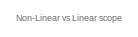
[diagram: root canvas - part 1/8, top right region]
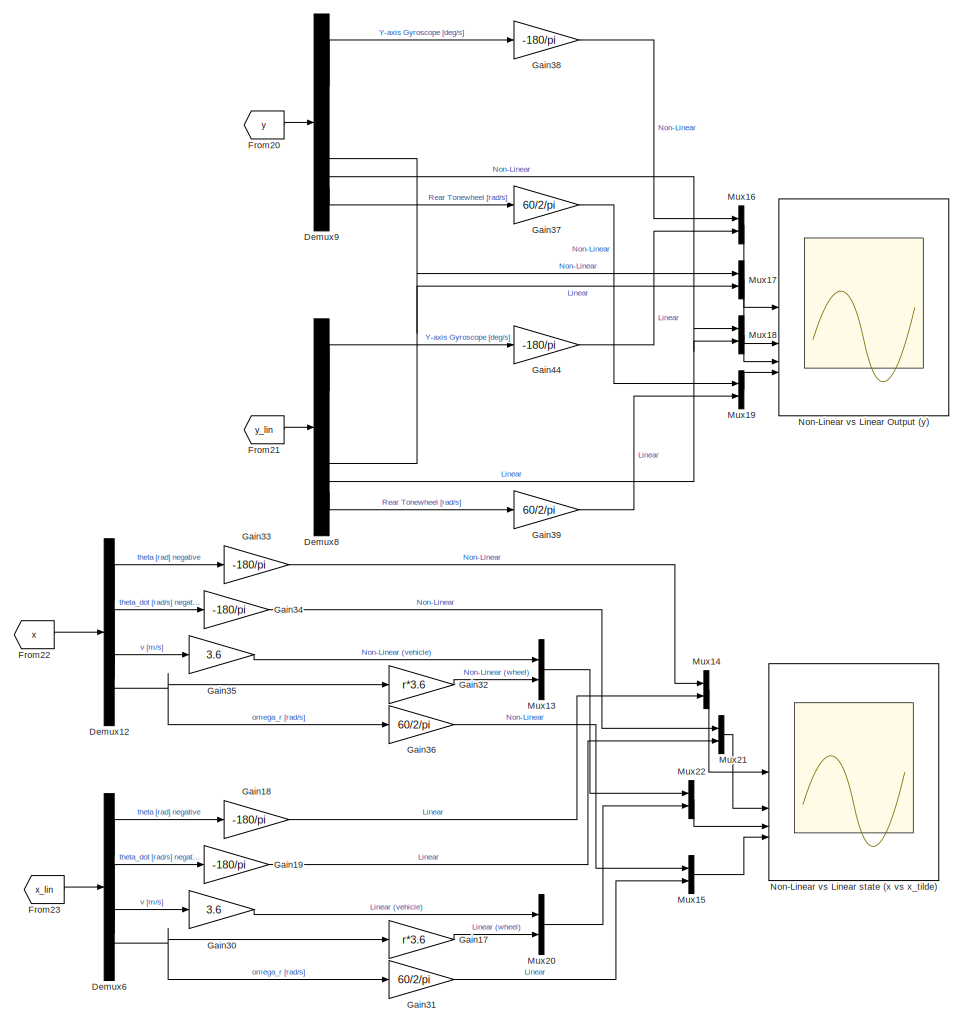
[diagram: root canvas - part 2/8, top right region]
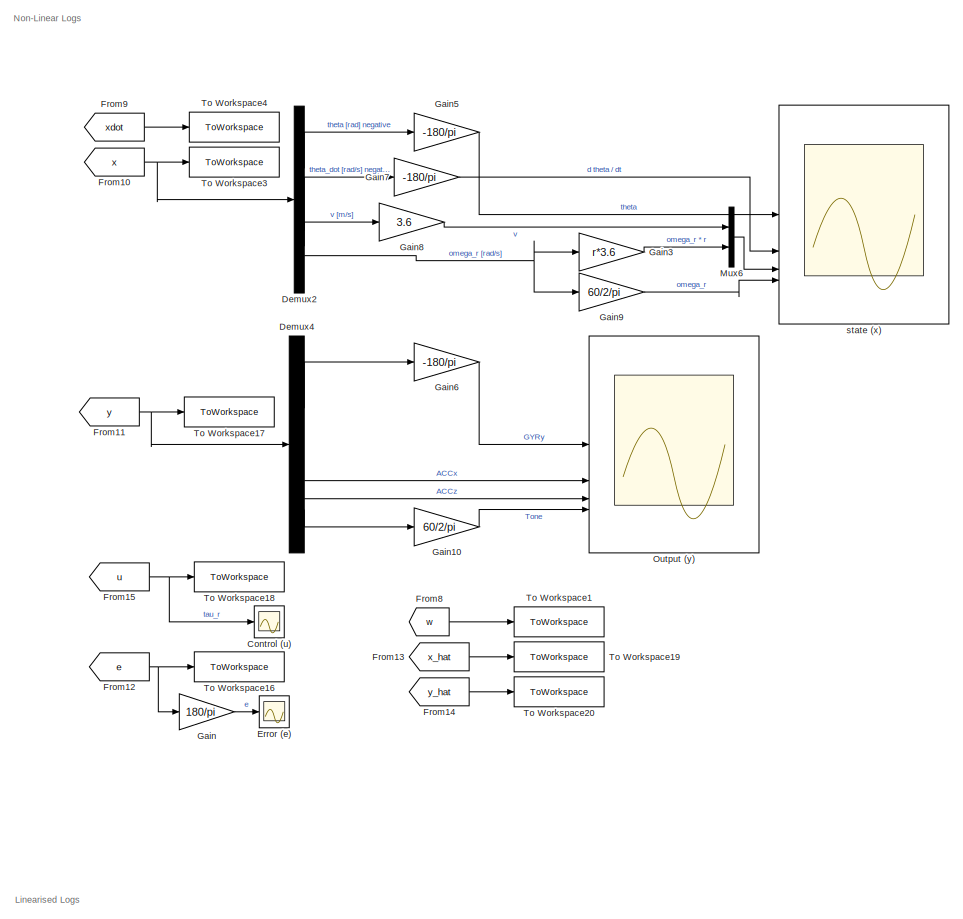
[diagram: root canvas - part 3/8, top center region]
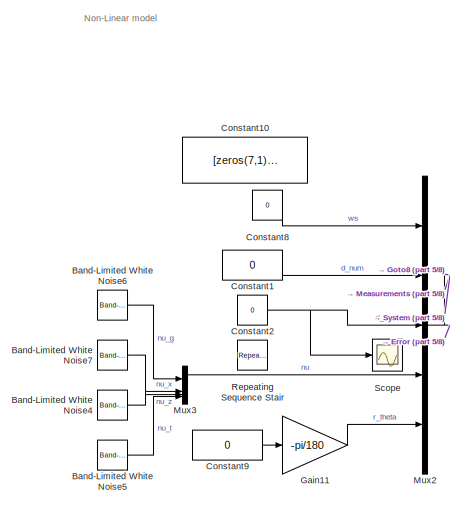
[diagram: root canvas - part 4/8, top left region]
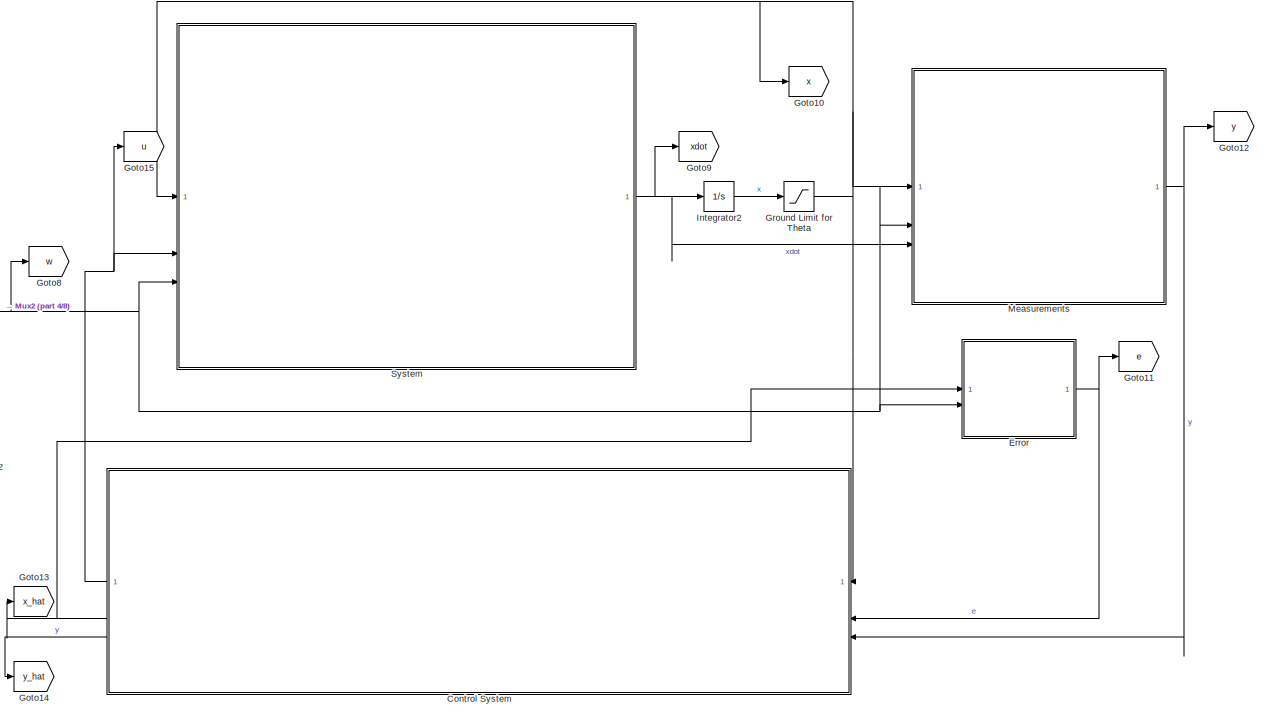
[diagram: root canvas - part 5/8, top left region]
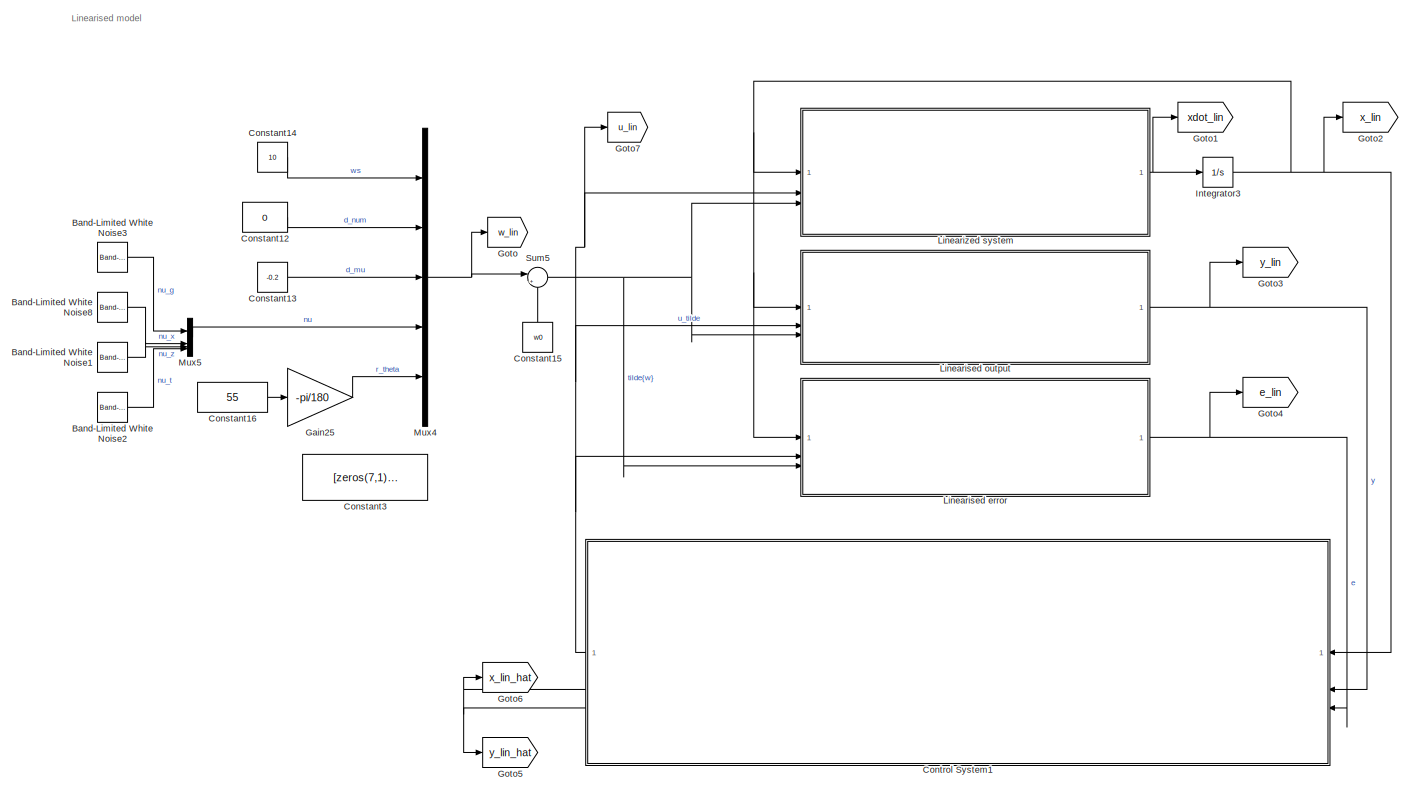
[diagram: root canvas - part 6/8, middle left region]
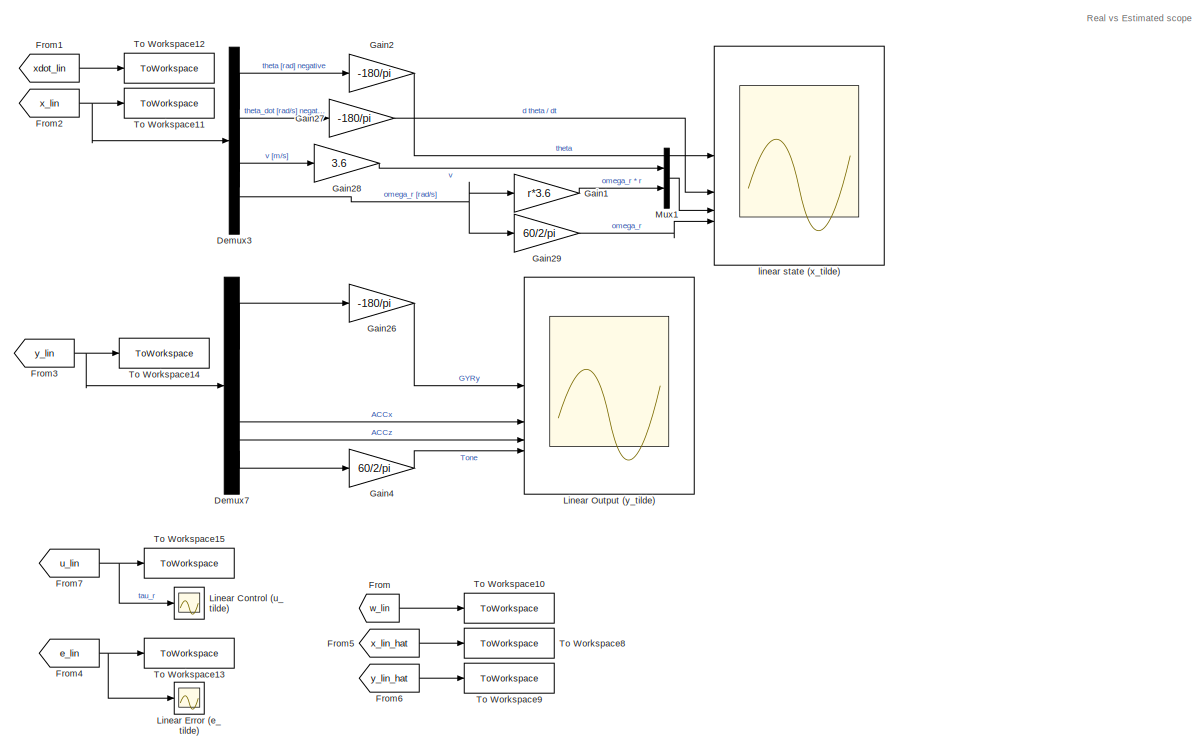
[diagram: root canvas - part 7/8, bottom center region]
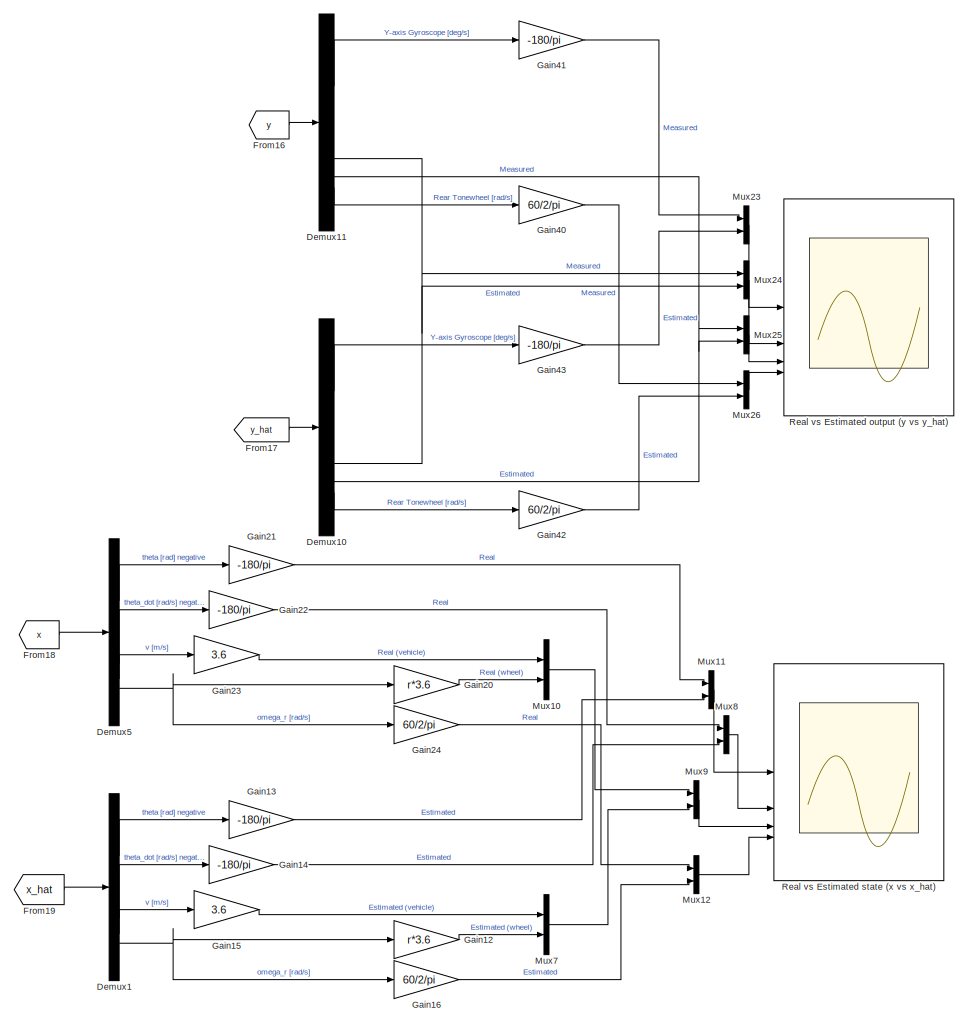
[diagram: root canvas - part 8/8, bottom right region]
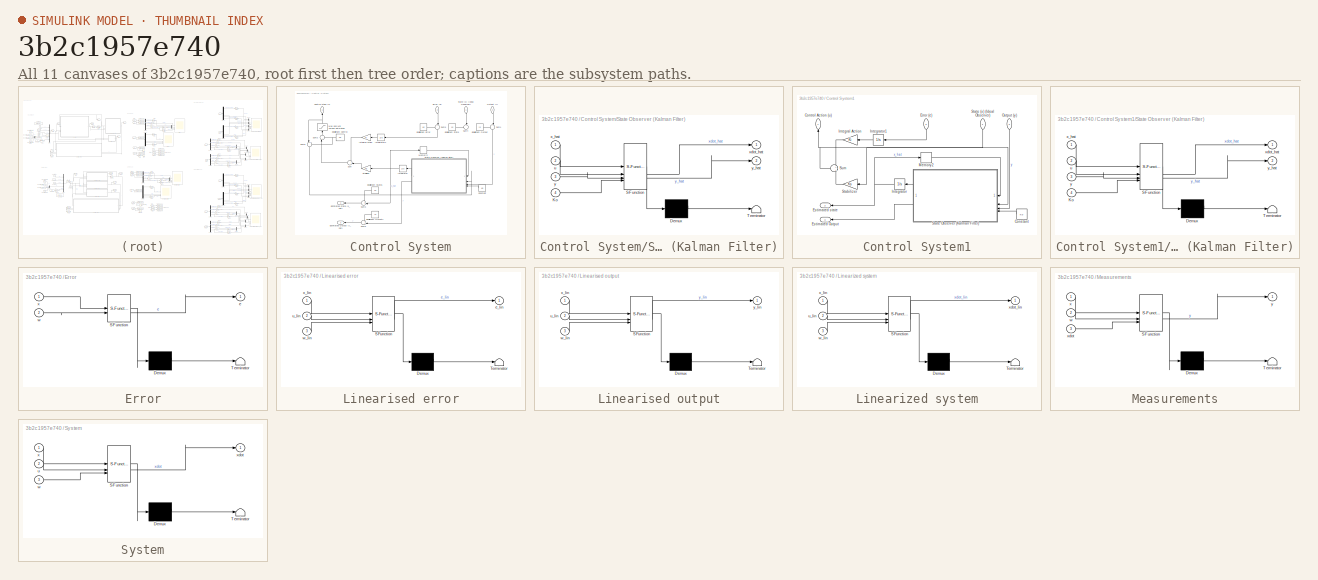
[diagram: thumbnail index - all 11 canvases of the model, root first then tree order]
MODEL slx_3b2c1957e740
KIND model
CONFIG AbsTol = auto
CONFIG EnableMultiTasking = off
CONFIG FixedStep = timestep
CONFIG InitFcn = % parameters= load("0 - Model\parameters2.mat");\n% \n% global parameters.g\n\n% global g\n% \n% % geometry parameters\n% global wb b a h 
CONFIG MaxStep = auto
CONFIG MinStep = auto
CONFIG RelTol = 1e-3
CONFIG SampleTimeConstraint = Unconstrained
CONFIG SolverName = FixedStepAuto
CONFIG StartTime = 0.0
CONFIG StopTime = simtime
BLOCK [Reference] Band-Limited White Noise1  REF=simulink/Sources/Band-Limited
White Noise
  Commented = on
  SourceBlock = simulink/Sources/Band-Limited\nWhite Noise
  SourceType = Band-Limited White Noise.
BLOCK [Reference] Band-Limited White Noise2  REF=simulink/Sources/Band-Limited
White Noise
  Commented = on
  SourceBlock = simulink/Sources/Band-Limited\nWhite Noise
  SourceType = Band-Limited White Noise.
BLOCK [Reference] Band-Limited White Noise3  REF=simulink/Sources/Band-Limited
White Noise
  Commented = on
  SourceBlock = simulink/Sources/Band-Limited\nWhite Noise
  SourceType = Band-Limited White Noise.
BLOCK [Reference] Band-Limited White Noise4  REF=simulink/Sources/Band-Limited
White Noise
  SourceBlock = simulink/Sources/Band-Limited\nWhite Noise
  SourceType = Band-Limited White Noise.
BLOCK [Reference] Band-Limited White Noise5  REF=simulink/Sources/Band-Limited
White Noise
  SourceBlock = simulink/Sources/Band-Limited\nWhite Noise
  SourceType = Band-Limited White Noise.
BLOCK [Reference] Band-Limited White Noise6  REF=simulink/Sources/Band-Limited
White Noise
  SourceBlock = simulink/Sources/Band-Limited\nWhite Noise
  SourceType = Band-Limited White Noise.
BLOCK [Reference] Band-Limited White Noise7  REF=simulink/Sources/Band-Limited
White Noise
  SourceBlock = simulink/Sources/Band-Limited\nWhite Noise
  SourceType = Band-Limited White Noise.
BLOCK [Reference] Band-Limited White Noise8  REF=simulink/Sources/Band-Limited
White Noise
  Commented = on
  SourceBlock = simulink/Sources/Band-Limited\nWhite Noise
  SourceType = Band-Limited White Noise.
BLOCK [Constant] Constant1
  Value = 0
BLOCK [Constant] Constant10
  Value = [zeros(7,1); -deg2rad(55)]
BLOCK [Constant] Constant12
  Commented = on
  Value = 0
BLOCK [Constant] Constant13
  Commented = on
  Value = -0.2
BLOCK [Constant] Constant14
  Commented = on
  Value = 10
BLOCK [Constant] Constant15
  Commented = on
  NameLocation = right
  Value = w0
BLOCK [Constant] Constant16
  Commented = on
  Value = 55
BLOCK [Constant] Constant2
  Value = 0
BLOCK [Constant] Constant3
  Commented = on
  Value = [zeros(7,1); -deg2rad(55)]
BLOCK [Constant] Constant8
  Value = 0
BLOCK [Constant] Constant9
  Value = 0
BLOCK [Scope] Control (u)
  Floating = off
  NumInputPorts = 1
  ScopeSpecificationString = Simulink.scopes.TimeScopeBlockCfg('CurrentConfiguration', extmgr.ConfigurationSet(extmgr.Configuration('Core','General UI',true),extmgr.Configuration('Core','Source UI',true),extmgr.Configuration('Sources','WiredSimulink',true,'DataLoggingVariableName','ScopeData1'),extmgr.Configuration('Visuals','Time Domain',true,'SerializedDisplays',{struct('MinYLimReal','-890.18336','MaxYLimReal','4081.97178',...<+1608ch>
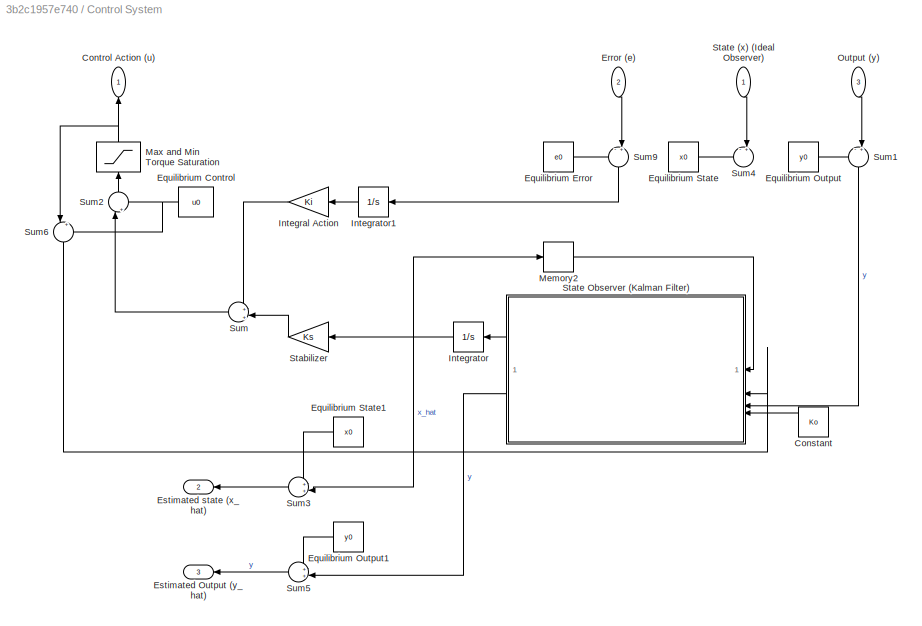
BLOCK [SubSystem] Control System
  NameLocation = top
BLOCK [Constant] Control System/Constant
  NameLocation = top
  Value = Ko
BLOCK [Outport] Control System/Control Action (u)
  NameLocation = right
BLOCK [Constant] Control System/Equilibrium Control
  Value = u0
BLOCK [Constant] Control System/Equilibrium Error
  Value = e0
BLOCK [Constant] Control System/Equilibrium Output
  Value = y0
BLOCK [Constant] Control System/Equilibrium Output1
  NameLocation = top
  Value = y0
BLOCK [Constant] Control System/Equilibrium State
  Value = x0
BLOCK [Constant] Control System/Equilibrium State1
  NameLocation = top
  Value = x0
BLOCK [Inport] Control System/Error (e)
  NameLocation = left
  Port = 2
BLOCK [Outport] Control System/Estimated Output (y_hat)
  NameLocation = top
  Port = 3
BLOCK [Outport] Control System/Estimated state (x_hat)
  NameLocation = top
  Port = 2
BLOCK [Gain] Control System/Integral Action
  Gain = Ki
  Multiplication = Matrix(K*u)
  NameLocation = top
BLOCK [Integrator] Control System/Integrator
  InitialCondition = xinitial-x0
  NameLocation = top
BLOCK [Integrator] Control System/Integrator1
  NameLocation = top
BLOCK [Saturate] Control System/Max and Min Torque Saturation
  LowerLimit = -200
  NameLocation = right
  UpperLimit = 754.2
BLOCK [Memory] Control System/Memory2
  InitialCondition = xinitial-x0
BLOCK [Inport] Control System/Output (y)
  NameLocation = left
  Port = 3
BLOCK [Gain] Control System/Stabilizer
  Gain = Ks
  Multiplication = Matrix(K*u)
BLOCK [Inport] Control System/State (x) (Ideal Observer)
  NameLocation = left
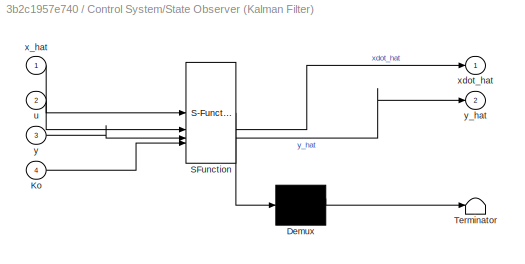
BLOCK [SubSystem] Control System/State Observer (Kalman Filter)
  ErrorFcn = Stateflow.Translate.translate
  NameLocation = top
  PermitHierarchicalResolution = ExplicitOnly
  SFBlockType = MATLAB Function
  TreatAsAtomicUnit = on
BLOCK [Demux] Control System/State Observer (Kalman Filter)/ Demux 
  Outputs = 1
BLOCK [S-Function] Control System/State Observer (Kalman Filter)/ SFunction 
  EnableBusSupport = on
  FunctionName = sf_sfun
  PortCounts = [4 3]
  SFcnIsStateOwnerBlock = off
  SFunctionDeploymentMode = off
  Tag = Stateflow S-Function 5
BLOCK [Terminator] Control System/State Observer (Kalman Filter)/ Terminator 
BLOCK [Inport] Control System/State Observer (Kalman Filter)/Ko
  Port = 4
BLOCK [Inport] Control System/State Observer (Kalman Filter)/u
  Port = 2
BLOCK [Inport] Control System/State Observer (Kalman Filter)/x_hat
BLOCK [Outport] Control System/State Observer (Kalman Filter)/xdot_hat
BLOCK [Inport] Control System/State Observer (Kalman Filter)/y
  Port = 3
BLOCK [Outport] Control System/State Observer (Kalman Filter)/y_hat
  Port = 2
BLOCK [Sum] Control System/Sum
  Inputs = +|+
  NameLocation = top
BLOCK [Sum] Control System/Sum1
  Inputs = -+|
  NameLocation = left
BLOCK [Sum] Control System/Sum2
  Inputs = |++
  NameLocation = right
BLOCK [Sum] Control System/Sum3
  Inputs = ++|
  NameLocation = top
BLOCK [Sum] Control System/Sum4
  Inputs = -+|
  NameLocation = left
BLOCK [Sum] Control System/Sum5
  Inputs = ++|
  NameLocation = top
BLOCK [Sum] Control System/Sum6
  Inputs = |+-
  NameLocation = left
BLOCK [Sum] Control System/Sum9
  Inputs = -+|
  NameLocation = left
BLOCK [SubSystem] Control System1
  Commented = on
  NameLocation = top
BLOCK [Constant] Control System1/Constant
  NameLocation = top
  Value = Ko
BLOCK [Outport] Control System1/Control Action (u)
  NameLocation = right
BLOCK [Inport] Control System1/Error (e)
  NameLocation = left
  Port = 3
BLOCK [Outport] Control System1/Estimated Output
  NameLocation = top
  Port = 3
BLOCK [Outport] Control System1/Estimated state
  NameLocation = top
  Port = 2
BLOCK [Gain] Control System1/Integral Action
  Gain = Ki
  Multiplication = Matrix(K*u)
  NameLocation = top
BLOCK [Integrator] Control System1/Integrator
  InitialCondition = xinitial-x0
  NameLocation = top
BLOCK [Integrator] Control System1/Integrator1
  NameLocation = top
BLOCK [Memory] Control System1/Memory2
  InitialCondition = xinitial-x0
BLOCK [Inport] Control System1/Output (y)
  NameLocation = left
  Port = 2
BLOCK [Gain] Control System1/Stabilizer
  Gain = Ks
  Multiplication = Matrix(K*u)
BLOCK [Inport] Control System1/State (x) (Ideal Observer)
  NameLocation = left
BLOCK [SubSystem] Control System1/State Observer (Kalman Filter)
  ErrorFcn = Stateflow.Translate.translate
  NameLocation = top
  PermitHierarchicalResolution = ExplicitOnly
  SFBlockType = MATLAB Function
  TreatAsAtomicUnit = on
BLOCK [Demux] Control System1/State Observer (Kalman Filter)/ Demux 
  Outputs = 1
BLOCK [S-Function] Control System1/State Observer (Kalman Filter)/ SFunction 
  EnableBusSupport = on
  FunctionName = sf_sfun
  PortCounts = [4 3]
  SFcnIsStateOwnerBlock = off
  SFunctionDeploymentMode = off
  Tag = Stateflow S-Function 2
BLOCK [Terminator] Control System1/State Observer (Kalman Filter)/ Terminator 
BLOCK [Inport] Control System1/State Observer (Kalman Filter)/Ko
  Port = 4
BLOCK [Inport] Control System1/State Observer (Kalman Filter)/u
  Port = 2
BLOCK [Inport] Control System1/State Observer (Kalman Filter)/x_hat
BLOCK [Outport] Control System1/State Observer (Kalman Filter)/xdot_hat
BLOCK [Inport] Control System1/State Observer (Kalman Filter)/y
  Port = 3
BLOCK [Outport] Control System1/State Observer (Kalman Filter)/y_hat
  Port = 2
BLOCK [Sum] Control System1/Sum
  Inputs = +|+
  NameLocation = top
BLOCK [Demux] Demux1
BLOCK [Demux] Demux10
BLOCK [Demux] Demux11
BLOCK [Demux] Demux12
  Commented = on
BLOCK [Demux] Demux2
BLOCK [Demux] Demux3
  Commented = on
BLOCK [Demux] Demux4
BLOCK [Demux] Demux5
BLOCK [Demux] Demux6
  Commented = on
BLOCK [Demux] Demux7
  Commented = on
BLOCK [Demux] Demux8
  Commented = on
BLOCK [Demux] Demux9
  Commented = on
BLOCK [SubSystem] Error
  ErrorFcn = Stateflow.Translate.translate
  PermitHierarchicalResolution = ExplicitOnly
  SFBlockType = MATLAB Function
  TreatAsAtomicUnit = on
BLOCK [Scope] Error (e)
  Floating = off
  NumInputPorts = 1
  ScopeSpecificationString = Simulink.scopes.TimeScopeBlockCfg('CurrentConfiguration', extmgr.ConfigurationSet(extmgr.Configuration('Core','General UI',true),extmgr.Configuration('Core','Source UI',true),extmgr.Configuration('Sources','WiredSimulink',true,'DataLoggingVariableName','ScopeData2'),extmgr.Configuration('Visuals','Time Domain',true,'SerializedDisplays',{struct('MinYLimReal','-0.89334','MaxYLimReal','5.70225','YLab...<+1533ch>
BLOCK [Demux] Error/ Demux 
  Outputs = 1
BLOCK [S-Function] Error/ SFunction 
  EnableBusSupport = on
  FunctionName = sf_sfun
  PortCounts = [2 2]
  SFcnIsStateOwnerBlock = off
  SFunctionDeploymentMode = off
  Tag = Stateflow S-Function 11
BLOCK [Terminator] Error/ Terminator 
BLOCK [Outport] Error/e
BLOCK [Inport] Error/w
  Port = 2
BLOCK [Inport] Error/x
BLOCK [From] From
  Commented = on
  GotoTag = w_lin
BLOCK [From] From1
  Commented = on
  GotoTag = xdot_lin
BLOCK [From] From10
  GotoTag = x
BLOCK [From] From11
  GotoTag = y
BLOCK [From] From12
  GotoTag = e
BLOCK [From] From13
  GotoTag = x_hat
BLOCK [From] From14
  GotoTag = y_hat
BLOCK [From] From15
  GotoTag = u
BLOCK [From] From16
  GotoTag = y
BLOCK [From] From17
  GotoTag = y_hat
BLOCK [From] From18
  GotoTag = x
BLOCK [From] From19
  GotoTag = x_hat
BLOCK [From] From2
  Commented = on
  GotoTag = x_lin
BLOCK [From] From20
  Commented = on
  GotoTag = y
BLOCK [From] From21
  Commented = on
  GotoTag = y_lin
BLOCK [From] From22
  Commented = on
  GotoTag = x
BLOCK [From] From23
  Commented = on
  GotoTag = x_lin
BLOCK [From] From3
  Commented = on
  GotoTag = y_lin
BLOCK [From] From4
  Commented = on
  GotoTag = e_lin
BLOCK [From] From5
  Commented = on
  GotoTag = x_lin_hat
BLOCK [From] From6
  Commented = on
  GotoTag = y_lin_hat
BLOCK [From] From7
  Commented = on
  GotoTag = u_lin
BLOCK [From] From8
  GotoTag = w
BLOCK [From] From9
  GotoTag = xdot
BLOCK [Gain] Gain
  Gain = 180/pi
BLOCK [Gain] Gain1
  Commented = on
  Gain = r*3.6
BLOCK [Gain] Gain10
  Gain = 60/2/pi
BLOCK [Gain] Gain11
  Gain = -pi/180
BLOCK [Gain] Gain12
  Gain = r*3.6
BLOCK [Gain] Gain13
  Gain = -180/pi
BLOCK [Gain] Gain14
  Gain = -180/pi
BLOCK [Gain] Gain15
  Gain = 3.6
BLOCK [Gain] Gain16
  Gain = 60/2/pi
BLOCK [Gain] Gain17
  Commented = on
  Gain = r*3.6
BLOCK [Gain] Gain18
  Commented = on
  Gain = -180/pi
BLOCK [Gain] Gain19
  Commented = on
  Gain = -180/pi
BLOCK [Gain] Gain2
  Commented = on
  Gain = -180/pi
BLOCK [Gain] Gain20
  Gain = r*3.6
BLOCK [Gain] Gain21
  Gain = -180/pi
BLOCK [Gain] Gain22
  Gain = -180/pi
BLOCK [Gain] Gain23
  Gain = 3.6
BLOCK [Gain] Gain24
  Gain = 60/2/pi
BLOCK [Gain] Gain25
  Commented = on
  Gain = -pi/180
BLOCK [Gain] Gain26
  Commented = on
  Gain = -180/pi
BLOCK [Gain] Gain27
  Commented = on
  Gain = -180/pi
BLOCK [Gain] Gain28
  Commented = on
  Gain = 3.6
BLOCK [Gain] Gain29
  Commented = on
  Gain = 60/2/pi
BLOCK [Gain] Gain3
  Gain = r*3.6
BLOCK [Gain] Gain30
  Commented = on
  Gain = 3.6
BLOCK [Gain] Gain31
  Commented = on
  Gain = 60/2/pi
BLOCK [Gain] Gain32
  Commented = on
  Gain = r*3.6
BLOCK [Gain] Gain33
  Commented = on
  Gain = -180/pi
BLOCK [Gain] Gain34
  Commented = on
  Gain = -180/pi
BLOCK [Gain] Gain35
  Commented = on
  Gain = 3.6
BLOCK [Gain] Gain36
  Commented = on
  Gain = 60/2/pi
BLOCK [Gain] Gain37
  Commented = on
  Gain = 60/2/pi
BLOCK [Gain] Gain38
  Commented = on
  Gain = -180/pi
BLOCK [Gain] Gain39
  Commented = on
  Gain = 60/2/pi
BLOCK [Gain] Gain4
  Commented = on
  Gain = 60/2/pi
BLOCK [Gain] Gain40
  Gain = 60/2/pi
BLOCK [Gain] Gain41
  Gain = -180/pi
BLOCK [Gain] Gain42
  Gain = 60/2/pi
BLOCK [Gain] Gain43
  Gain = -180/pi
BLOCK [Gain] Gain44
  Commented = on
  Gain = -180/pi
BLOCK [Gain] Gain5
  Gain = -180/pi
BLOCK [Gain] Gain6
  Gain = -180/pi
BLOCK [Gain] Gain7
  Gain = -180/pi
BLOCK [Gain] Gain8
  Gain = 3.6
BLOCK [Gain] Gain9
  Gain = 60/2/pi
BLOCK [Goto] Goto
  Commented = on
  GotoTag = w_lin
BLOCK [Goto] Goto1
  Commented = on
  GotoTag = xdot_lin
BLOCK [Goto] Goto10
  GotoTag = x
BLOCK [Goto] Goto11
  GotoTag = e
BLOCK [Goto] Goto12
  GotoTag = y
BLOCK [Goto] Goto13
  GotoTag = x_hat
BLOCK [Goto] Goto14
  GotoTag = y_hat
BLOCK [Goto] Goto15
  GotoTag = u
BLOCK [Goto] Goto2
  Commented = on
  GotoTag = x_lin
BLOCK [Goto] Goto3
  Commented = on
  GotoTag = y_lin
BLOCK [Goto] Goto4
  Commented = on
  GotoTag = e_lin
BLOCK [Goto] Goto5
  Commented = on
  GotoTag = y_lin_hat
BLOCK [Goto] Goto6
  Commented = on
  GotoTag = x_lin_hat
BLOCK [Goto] Goto7
  Commented = on
  GotoTag = u_lin
BLOCK [Goto] Goto8
  GotoTag = w
BLOCK [Goto] Goto9
  GotoTag = xdot
BLOCK [Saturate] Ground Limit for Theta
  LowerLimit = [-inf;-inf;-inf;-inf]
  UpperLimit = [0;inf;inf;inf]
BLOCK [Integrator] Integrator2
  InitialCondition = xinitial
  LowerSaturationLimit = -45
  UpperSaturationLimit = 5
BLOCK [Integrator] Integrator3
  Commented = on
  InitialCondition = xinitial - x0
  LowerSaturationLimit = -45
  UpperSaturationLimit = 5
BLOCK [Scope] Linear Control (u_tilde)
  Commented = on
  Floating = off
  NumInputPorts = 1
  ScopeSpecificationString = Simulink.scopes.TimeScopeBlockCfg('CurrentConfiguration', extmgr.ConfigurationSet(extmgr.Configuration('Core','General UI',true),extmgr.Configuration('Core','Source UI',true),extmgr.Configuration('Sources','WiredSimulink',true,'DataLoggingVariableName','ScopeData7'),extmgr.Configuration('Visuals','Time Domain',true,'SerializedDisplays',{struct('MinYLimReal','82.60182','MaxYLimReal','2984.76709','Y...<+1605ch>
BLOCK [Scope] Linear Error (e_tilde)
  Commented = on
  Floating = off
  NumInputPorts = 1
  ScopeSpecificationString = Simulink.scopes.TimeScopeBlockCfg('CurrentConfiguration', extmgr.ConfigurationSet(extmgr.Configuration('Core','General UI',true),extmgr.Configuration('Core','Source UI',true),extmgr.Configuration('Sources','WiredSimulink',true,'DataLoggingVariableName','ScopeData8'),extmgr.Configuration('Visuals','Time Domain',true,'SerializedDisplays',{struct('MinYLimReal','-4.64133','MaxYLimReal','0.52523','YLab...<+1389ch>
BLOCK [Scope] Linear Output (y_tilde)
  Commented = on
  Floating = off
  NumInputPorts = 4
  ScopeSpecificationString = Simulink.scopes.TimeScopeBlockCfg('CurrentConfiguration', extmgr.ConfigurationSet(extmgr.Configuration('Core','General UI',true),extmgr.Configuration('Core','Source UI',true),extmgr.Configuration('Sources','WiredSimulink',true,'DataLoggingVariableName','ScopeData9'),extmgr.Configuration('Visuals','Time Domain',true,'SerializedDisplays',{struct('MinYLimReal','-5.26063','MaxYLimReal','47.3457','YLab...<+4058ch>
BLOCK [SubSystem] Linearised error
  Commented = on
  ErrorFcn = Stateflow.Translate.translate
  PermitHierarchicalResolution = ExplicitOnly
  SFBlockType = MATLAB Function
  TreatAsAtomicUnit = on
BLOCK [Demux] Linearised error/ Demux 
  Outputs = 1
BLOCK [S-Function] Linearised error/ SFunction 
  EnableBusSupport = on
  FunctionName = sf_sfun
  PortCounts = [3 2]
  SFcnIsStateOwnerBlock = off
  SFunctionDeploymentMode = off
  Tag = Stateflow S-Function 8
BLOCK [Terminator] Linearised error/ Terminator 
BLOCK [Outport] Linearised error/e_lin
BLOCK [Inport] Linearised error/u_lin
  Port = 2
BLOCK [Inport] Linearised error/w_lin
  Port = 3
BLOCK [Inport] Linearised error/x_lin
BLOCK [SubSystem] Linearised output
  Commented = on
  ErrorFcn = Stateflow.Translate.translate
  PermitHierarchicalResolution = ExplicitOnly
  SFBlockType = MATLAB Function
  TreatAsAtomicUnit = on
BLOCK [Demux] Linearised output/ Demux 
  Outputs = 1
BLOCK [S-Function] Linearised output/ SFunction 
  EnableBusSupport = on
  FunctionName = sf_sfun
  PortCounts = [3 2]
  SFcnIsStateOwnerBlock = off
  SFunctionDeploymentMode = off
  Tag = Stateflow S-Function 7
BLOCK [Terminator] Linearised output/ Terminator 
BLOCK [Inport] Linearised output/u_lin
  Port = 2
BLOCK [Inport] Linearised output/w_lin
  Port = 3
BLOCK [Inport] Linearised output/x_lin
BLOCK [Outport] Linearised output/y_lin
BLOCK [SubSystem] Linearized system
  Commented = on
  ErrorFcn = Stateflow.Translate.translate
  PermitHierarchicalResolution = ExplicitOnly
  SFBlockType = MATLAB Function
  TreatAsAtomicUnit = on
BLOCK [Demux] Linearized system/ Demux 
  Outputs = 1
BLOCK [S-Function] Linearized system/ SFunction 
  EnableBusSupport = on
  FunctionName = sf_sfun
  PortCounts = [3 2]
  SFcnIsStateOwnerBlock = off
  SFunctionDeploymentMode = off
  Tag = Stateflow S-Function 12
BLOCK [Terminator] Linearized system/ Terminator 
BLOCK [Inport] Linearized system/u_lin
  Port = 2
BLOCK [Inport] Linearized system/w_lin
  Port = 3
BLOCK [Inport] Linearized system/x_lin
BLOCK [Outport] Linearized system/xdot_lin
BLOCK [SubSystem] Measurements
  ErrorFcn = Stateflow.Translate.translate
  PermitHierarchicalResolution = ExplicitOnly
  SFBlockType = MATLAB Function
  TreatAsAtomicUnit = on
BLOCK [Demux] Measurements/ Demux 
  Outputs = 1
BLOCK [S-Function] Measurements/ SFunction 
  EnableBusSupport = on
  FunctionName = sf_sfun
  PortCounts = [3 2]
  SFcnIsStateOwnerBlock = off
  SFunctionDeploymentMode = off
  Tag = Stateflow S-Function 10
BLOCK [Terminator] Measurements/ Terminator 
BLOCK [Inport] Measurements/w
  Port = 2
BLOCK [Inport] Measurements/x
BLOCK [Inport] Measurements/xdot
  Port = 3
BLOCK [Outport] Measurements/y
BLOCK [Mux] Mux1
  Commented = on
  DisplayOption = bar
  Inputs = 2
BLOCK [Mux] Mux10
  DisplayOption = bar
  Inputs = 2
BLOCK [Mux] Mux11
  DisplayOption = bar
  Inputs = 2
BLOCK [Mux] Mux12
  DisplayOption = bar
  Inputs = 2
BLOCK [Mux] Mux13
  Commented = on
  DisplayOption = bar
  Inputs = 2
BLOCK [Mux] Mux14
  Commented = on
  DisplayOption = bar
  Inputs = 2
BLOCK [Mux] Mux15
  Commented = on
  DisplayOption = bar
  Inputs = 2
BLOCK [Mux] Mux16
  Commented = on
  DisplayOption = bar
  Inputs = 2
BLOCK [Mux] Mux17
  Commented = on
  DisplayOption = bar
  Inputs = 2
BLOCK [Mux] Mux18
  Commented = on
  DisplayOption = bar
  Inputs = 2
BLOCK [Mux] Mux19
  Commented = on
  DisplayOption = bar
  Inputs = 2
BLOCK [Mux] Mux2
  DisplayOption = bar
  Inputs = 5
BLOCK [Mux] Mux20
  Commented = on
  DisplayOption = bar
  Inputs = 2
BLOCK [Mux] Mux21
  Commented = on
  DisplayOption = bar
  Inputs = 2
BLOCK [Mux] Mux22
  Commented = on
  DisplayOption = bar
  Inputs = 2
BLOCK [Mux] Mux23
  DisplayOption = bar
  Inputs = 2
BLOCK [Mux] Mux24
  DisplayOption = bar
  Inputs = 2
BLOCK [Mux] Mux25
  DisplayOption = bar
  Inputs = 2
BLOCK [Mux] Mux26
  DisplayOption = bar
  Inputs = 2
BLOCK [Mux] Mux3
  DisplayOption = bar
BLOCK [Mux] Mux4
  Commented = on
  DisplayOption = bar
  Inputs = 5
BLOCK [Mux] Mux5
  Commented = on
  DisplayOption = bar
BLOCK [Mux] Mux6
  DisplayOption = bar
  Inputs = 2
BLOCK [Mux] Mux7
  DisplayOption = bar
  Inputs = 2
BLOCK [Mux] Mux8
  DisplayOption = bar
  Inputs = 2
BLOCK [Mux] Mux9
  DisplayOption = bar
  Inputs = 2
BLOCK [Scope] Non-Linear vs Linear Output (y)
  Commented = on
  Floating = off
  NumInputPorts = 4
  ScopeSpecificationString = Simulink.scopes.TimeScopeBlockCfg('CurrentConfiguration', extmgr.ConfigurationSet(extmgr.Configuration('Core','General UI',true),extmgr.Configuration('Core','Source UI',true),extmgr.Configuration('Sources','WiredSimulink',true,'DataLoggingVariableName','ScopeData5'),extmgr.Configuration('Visuals','Time Domain',true,'SerializedDisplays',{struct('MinYLimReal','-42.54032','MaxYLimReal','166.0463','YL...<+4345ch>
BLOCK [Scope] Non-Linear vs Linear state (x vs x_tilde)
  Commented = on
  Floating = off
  NumInputPorts = 4
  ScopeSpecificationString = Simulink.scopes.TimeScopeBlockCfg('CurrentConfiguration', extmgr.ConfigurationSet(extmgr.Configuration('Core','General UI',true),extmgr.Configuration('Core','Source UI',true),extmgr.Configuration('Sources','WiredSimulink',true,'DataLoggingVariableName','ScopeData6'),extmgr.Configuration('Visuals','Time Domain',true,'SerializedDisplays',{struct('MinYLimReal','-17.5592','MaxYLimReal','62.22339','YLa...<+4446ch>
BLOCK [Scope] Output (y)
  Floating = off
  NumInputPorts = 4
  ScopeSpecificationString = Simulink.scopes.TimeScopeBlockCfg('CurrentConfiguration', extmgr.ConfigurationSet(extmgr.Configuration('Core','General UI',true),extmgr.Configuration('Core','Source UI',true),extmgr.Configuration('Sources','WiredSimulink',true,'DataLoggingVariableName','ScopeData3'),extmgr.Configuration('Visuals','Time Domain',true,'SerializedDisplays',{struct('MinYLimReal','-5.26063','MaxYLimReal','47.3457','YLab...<+4058ch>
BLOCK [Scope] Real vs Estimated output (y vs y_hat)
  Floating = off
  NumInputPorts = 4
  ScopeSpecificationString = Simulink.scopes.TimeScopeBlockCfg('CurrentConfiguration', extmgr.ConfigurationSet(extmgr.Configuration('Core','General UI',true),extmgr.Configuration('Core','Source UI',true),extmgr.Configuration('Sources','WiredSimulink',true,'DataLoggingVariableName','ScopeData2'),extmgr.Configuration('Visuals','Time Domain',true,'SerializedDisplays',{struct('MinYLimReal','-60.1999','MaxYLimReal','125.34081','YL...<+4466ch>
BLOCK [Scope] Real vs Estimated state (x vs x_hat)
  Floating = off
  NumInputPorts = 4
  ScopeSpecificationString = Simulink.scopes.TimeScopeBlockCfg('CurrentConfiguration', extmgr.ConfigurationSet(extmgr.Configuration('Core','General UI',true),extmgr.Configuration('Core','Source UI',true),extmgr.Configuration('Sources','WiredSimulink',true,'DataLoggingVariableName','ScopeData1'),extmgr.Configuration('Visuals','Time Domain',true,'SerializedDisplays',{struct('MinYLimReal','-6.42632','MaxYLimReal','57.60061','YLa...<+4686ch>
BLOCK [Reference] Repeating Sequence Stair  REF=simulink/Sources/Repeating
Sequence
Stair
  SourceBlock = simulink/Sources/Repeating\nSequence\nStair
  SourceType = Repeating Sequence Stair
BLOCK [Scope] Scope
  Floating = off
  NumInputPorts = 1
  ScopeSpecificationString = Simulink.scopes.TimeScopeBlockCfg('CurrentConfiguration', extmgr.ConfigurationSet(extmgr.Configuration('Core','General UI',true),extmgr.Configuration('Core','Source UI',true),extmgr.Configuration('Sources','WiredSimulink',true,'DataLoggingVariableName','ScopeData1'),extmgr.Configuration('Visuals','Time Domain',true,'SerializedDisplays',{struct('MinYLimReal','-1.00000','MaxYLimReal','1.00000','YLab...<+1570ch>
BLOCK [Sum] Sum5
  Commented = on
  Inputs = |+-
BLOCK [SubSystem] System
  ErrorFcn = Stateflow.Translate.translate
  PermitHierarchicalResolution = ExplicitOnly
  SFBlockType = MATLAB Function
  TreatAsAtomicUnit = on
BLOCK [Demux] System/ Demux 
  Outputs = 1
BLOCK [S-Function] System/ SFunction 
  EnableBusSupport = on
  FunctionName = sf_sfun
  PortCounts = [3 2]
  SFcnIsStateOwnerBlock = off
  SFunctionDeploymentMode = off
  Tag = Stateflow S-Function 9
BLOCK [Terminator] System/ Terminator 
BLOCK [Inport] System/u
  Port = 2
BLOCK [Inport] System/w
  Port = 3
BLOCK [Inport] System/x
BLOCK [Outport] System/xdot
BLOCK [ToWorkspace] To Workspace1
  FixptAsFi = on
  MaxDataPoints = inf
  SampleTime = -1
  SaveFormat = Timeseries
  VariableName = w
BLOCK [ToWorkspace] To Workspace10
  Commented = on
  FixptAsFi = on
  MaxDataPoints = inf
  SampleTime = -1
  SaveFormat = Timeseries
  VariableName = w_lin
BLOCK [ToWorkspace] To Workspace11
  Commented = on
  FixptAsFi = on
  MaxDataPoints = inf
  SampleTime = -1
  SaveFormat = Timeseries
  VariableName = x_lin
BLOCK [ToWorkspace] To Workspace12
  Commented = on
  FixptAsFi = on
  MaxDataPoints = inf
  SampleTime = -1
  SaveFormat = Timeseries
  VariableName = xdot_lin
BLOCK [ToWorkspace] To Workspace13
  Commented = on
  FixptAsFi = on
  MaxDataPoints = inf
  SampleTime = -1
  SaveFormat = Timeseries
  VariableName = e_lin
BLOCK [ToWorkspace] To Workspace14
  Commented = on
  FixptAsFi = on
  MaxDataPoints = inf
  SampleTime = -1
  SaveFormat = Timeseries
  VariableName = y_lin
BLOCK [ToWorkspace] To Workspace15
  Commented = on
  FixptAsFi = on
  MaxDataPoints = inf
  SampleTime = -1
  SaveFormat = Timeseries
  VariableName = u_lin
BLOCK [ToWorkspace] To Workspace16
  FixptAsFi = on
  MaxDataPoints = inf
  SampleTime = -1
  SaveFormat = Timeseries
  VariableName = e
BLOCK [ToWorkspace] To Workspace17
  FixptAsFi = on
  MaxDataPoints = inf
  SampleTime = -1
  SaveFormat = Timeseries
  VariableName = y
BLOCK [ToWorkspace] To Workspace18
  FixptAsFi = on
  MaxDataPoints = inf
  SampleTime = -1
  SaveFormat = Timeseries
  VariableName = u
BLOCK [ToWorkspace] To Workspace19
  FixptAsFi = on
  MaxDataPoints = inf
  SampleTime = -1
  SaveFormat = Timeseries
  VariableName = x_hat
BLOCK [ToWorkspace] To Workspace20
  FixptAsFi = on
  MaxDataPoints = inf
  SampleTime = -1
  SaveFormat = Timeseries
  VariableName = y_hat
BLOCK [ToWorkspace] To Workspace3
  FixptAsFi = on
  MaxDataPoints = inf
  SampleTime = -1
  SaveFormat = Timeseries
  VariableName = x
BLOCK [ToWorkspace] To Workspace4
  FixptAsFi = on
  MaxDataPoints = inf
  SampleTime = -1
  SaveFormat = Timeseries
  VariableName = xdot
BLOCK [ToWorkspace] To Workspace8
  Commented = on
  FixptAsFi = on
  MaxDataPoints = inf
  SampleTime = -1
  SaveFormat = Timeseries
  VariableName = x_lin_hat
BLOCK [ToWorkspace] To Workspace9
  Commented = on
  FixptAsFi = on
  MaxDataPoints = inf
  SampleTime = -1
  SaveFormat = Timeseries
  VariableName = y_lin_hat
BLOCK [Scope] linear state (x_tilde)
  Commented = on
  Floating = off
  NumInputPorts = 4
  ScopeSpecificationString = Simulink.scopes.TimeScopeBlockCfg('CurrentConfiguration', extmgr.ConfigurationSet(extmgr.Configuration('Core','General UI',true),extmgr.Configuration('Core','Source UI',true),extmgr.Configuration('Sources','WiredSimulink',true,'DataLoggingVariableName','ScopeData10'),extmgr.Configuration('Visuals','Time Domain',true,'SerializedDisplays',{struct('MinYLimReal','-3.91109','MaxYLimReal','0.43457','YLa...<+4027ch>
BLOCK [Scope] state (x)
  Floating = off
  NumInputPorts = 4
  ScopeSpecificationString = Simulink.scopes.TimeScopeBlockCfg('CurrentConfiguration', extmgr.ConfigurationSet(extmgr.Configuration('Core','General UI',true),extmgr.Configuration('Core','Source UI',true),extmgr.Configuration('Sources','WiredSimulink',true,'DataLoggingVariableName','ScopeData4'),extmgr.Configuration('Visuals','Time Domain',true,'SerializedDisplays',{struct('MinYLimReal','-6.51363','MaxYLimReal','58.62271','YLa...<+4058ch>
ANNOTATION (root): Linearised Logs
ANNOTATION (root): Linearised model
ANNOTATION (root): Non-Linear Logs
ANNOTATION (root): Non-Linear model
ANNOTATION (root): Non-Linear vs Linear scope
ANNOTATION (root): Real vs Estimated scope
LINE Band-Limited White Noise1:1 -> Mux5:3
LINE Band-Limited White Noise2:1 -> Mux5:4
LINE Band-Limited White Noise3:1 -> Mux5:1
LINE Band-Limited White Noise4:1 -> Mux3:3
LINE Band-Limited White Noise5:1 -> Mux3:4
LINE Band-Limited White Noise6:1 -> Mux3:1
LINE Band-Limited White Noise7:1 -> Mux3:2
LINE Band-Limited White Noise8:1 -> Mux5:2
LINE Constant12:1 -> Mux4:2
LINE Constant13:1 -> Mux4:3
LINE Constant14:1 -> Mux4:1
LINE Constant15:1 -> Sum5:2
LINE Constant16:1 -> Gain25:1
LINE Constant1:1 -> Mux2:2
NET Constant2:1 -> Mux2:3, Scope:1
LINE Constant8:1 -> Mux2:1
LINE Constant9:1 -> Gain11:1
LINE Control System/Constant:1 -> Control System/State Observer (Kalman Filter):4
NET Control System/Equilibrium Control:1 -> Control System/Sum2:2, Control System/Sum6:2
LINE Control System/Equilibrium Error:1 -> Control System/Sum9:1
LINE Control System/Equilibrium Output1:1 -> Control System/Sum5:1
LINE Control System/Equilibrium Output:1 -> Control System/Sum1:1
LINE Control System/Equilibrium State1:1 -> Control System/Sum3:1
LINE Control System/Equilibrium State:1 -> Control System/Sum4:1
LINE Control System/Error (e):1 -> Control System/Sum9:2
LINE Control System/Integral Action:1 -> Control System/Sum:1
LINE Control System/Integrator1:1 -> Control System/Integral Action:1
NET Control System/Integrator:1 -> Control System/Memory2:1, Control System/Stabilizer:1, Control System/Sum3:2
NET Control System/Max and Min Torque Saturation:1 -> Control System/Control Action (u):1, Control System/Sum6:1
LINE Control System/Memory2:1 -> Control System/State Observer (Kalman Filter):1
LINE Control System/Output (y):1 -> Control System/Sum1:2
LINE Control System/Stabilizer:1 -> Control System/Sum:2
LINE Control System/State (x) (Ideal Observer):1 -> Control System/Sum4:2
LINE Control System/State Observer (Kalman Filter):1 -> Control System/Integrator:1
LINE Control System/State Observer (Kalman Filter):2 -> Control System/Sum5:2
LINE Control System/Sum1:1 -> Control System/State Observer (Kalman Filter):3
LINE Control System/Sum2:1 -> Control System/Max and Min Torque Saturation:1
LINE Control System/Sum3:1 -> Control System/Estimated state (x_hat):1
LINE Control System/Sum5:1 -> Control System/Estimated Output (y_hat):1
LINE Control System/Sum6:1 -> Control System/State Observer (Kalman Filter):2
LINE Control System/Sum9:1 -> Control System/Integrator1:1
LINE Control System/Sum:1 -> Control System/Sum2:1
LINE Control System1/Constant:1 -> Control System1/State Observer (Kalman Filter):4
LINE Control System1/Error (e):1 -> Control System1/Integrator1:1
LINE Control System1/Integral Action:1 -> Control System1/Sum:1
LINE Control System1/Integrator1:1 -> Control System1/Integral Action:1
NET Control System1/Integrator:1 -> Control System1/Estimated state:1, Control System1/Memory2:1
LINE Control System1/Memory2:1 -> Control System1/State Observer (Kalman Filter):1
LINE Control System1/Output (y):1 -> Control System1/State Observer (Kalman Filter):3
LINE Control System1/Stabilizer:1 -> Control System1/Sum:2
LINE Control System1/State (x) (Ideal Observer):1 -> Control System1/Stabilizer:1
LINE Control System1/State Observer (Kalman Filter):1 -> Control System1/Integrator:1
LINE Control System1/State Observer (Kalman Filter):2 -> Control System1/Estimated Output:1
NET Control System1/Sum:1 -> Control System1/Control Action (u):1, Control System1/State Observer (Kalman Filter):2
NET Control System1:1 -> Goto7:1, Linearised error:2, Linearised output:2, Linearized system:2
LINE Control System1:2 -> Goto6:1
LINE Control System1:3 -> Goto5:1
NET Control System:1 -> Goto15:1, System:2
NET Control System:2 -> Error:1, Goto13:1
LINE Control System:3 -> Goto14:1
LINE Demux10:1 -> Gain43:1
LINE Demux10:2 -> Mux24:2
LINE Demux10:3 -> Mux25:2
LINE Demux10:4 -> Gain42:1
LINE Demux11:1 -> Gain41:1
LINE Demux11:2 -> Mux24:1
LINE Demux11:3 -> Mux25:1
LINE Demux11:4 -> Gain40:1
LINE Demux12:1 -> Gain33:1
LINE Demux12:2 -> Gain34:1
LINE Demux12:3 -> Gain35:1
NET Demux12:4 -> Gain32:1, Gain36:1
LINE Demux1:1 -> Gain13:1
LINE Demux1:2 -> Gain14:1
LINE Demux1:3 -> Gain15:1
NET Demux1:4 -> Gain12:1, Gain16:1
LINE Demux2:1 -> Gain5:1
LINE Demux2:2 -> Gain7:1
LINE Demux2:3 -> Gain8:1
NET Demux2:4 -> Gain3:1, Gain9:1
LINE Demux3:1 -> Gain2:1
LINE Demux3:2 -> Gain27:1
LINE Demux3:3 -> Gain28:1
NET Demux3:4 -> Gain1:1, Gain29:1
LINE Demux4:1 -> Gain6:1
LINE Demux4:2 -> Output (y):2
LINE Demux4:3 -> Output (y):3
LINE Demux4:4 -> Gain10:1
LINE Demux5:1 -> Gain21:1
LINE Demux5:2 -> Gain22:1
LINE Demux5:3 -> Gain23:1
NET Demux5:4 -> Gain20:1, Gain24:1
LINE Demux6:1 -> Gain18:1
LINE Demux6:2 -> Gain19:1
LINE Demux6:3 -> Gain30:1
NET Demux6:4 -> Gain17:1, Gain31:1
LINE Demux7:1 -> Gain26:1
LINE Demux7:2 -> Linear Output (y_tilde):2
LINE Demux7:3 -> Linear Output (y_tilde):3
LINE Demux7:4 -> Gain4:1
LINE Demux8:1 -> Gain44:1
LINE Demux8:2 -> Mux17:2
LINE Demux8:3 -> Mux18:2
LINE Demux8:4 -> Gain39:1
LINE Demux9:1 -> Gain38:1
LINE Demux9:2 -> Mux17:1
LINE Demux9:3 -> Mux18:1
LINE Demux9:4 -> Gain37:1
NET Error:1 -> Control System:2, Goto11:1
NET From10:1 -> Demux2:1, To Workspace3:1
NET From11:1 -> Demux4:1, To Workspace17:1
NET From12:1 -> Gain:1, To Workspace16:1
LINE From13:1 -> To Workspace19:1
LINE From14:1 -> To Workspace20:1
NET From15:1 -> Control (u):1, To Workspace18:1
LINE From16:1 -> Demux11:1
LINE From17:1 -> Demux10:1
LINE From18:1 -> Demux5:1
LINE From19:1 -> Demux1:1
LINE From1:1 -> To Workspace12:1
LINE From20:1 -> Demux9:1
LINE From21:1 -> Demux8:1
LINE From22:1 -> Demux12:1
LINE From23:1 -> Demux6:1
NET From2:1 -> Demux3:1, To Workspace11:1
NET From3:1 -> Demux7:1, To Workspace14:1
NET From4:1 -> Linear Error (e_tilde):1, To Workspace13:1
LINE From5:1 -> To Workspace8:1
LINE From6:1 -> To Workspace9:1
NET From7:1 -> Linear Control (u_tilde):1, To Workspace15:1
LINE From8:1 -> To Workspace1:1
LINE From9:1 -> To Workspace4:1
LINE From:1 -> To Workspace10:1
LINE Gain10:1 -> Output (y):4
LINE Gain11:1 -> Mux2:5
LINE Gain12:1 -> Mux7:2
LINE Gain13:1 -> Mux11:2
LINE Gain14:1 -> Mux8:2
LINE Gain15:1 -> Mux7:1
LINE Gain16:1 -> Mux12:2
LINE Gain17:1 -> Mux20:2
LINE Gain18:1 -> Mux14:2
LINE Gain19:1 -> Mux21:2
LINE Gain1:1 -> Mux1:2
LINE Gain20:1 -> Mux10:2
LINE Gain21:1 -> Mux11:1
LINE Gain22:1 -> Mux8:1
LINE Gain23:1 -> Mux10:1
LINE Gain24:1 -> Mux12:1
LINE Gain25:1 -> Mux4:5
LINE Gain26:1 -> Linear Output (y_tilde):1
LINE Gain27:1 -> linear state (x_tilde):2
LINE Gain28:1 -> Mux1:1
LINE Gain29:1 -> linear state (x_tilde):4
LINE Gain2:1 -> linear state (x_tilde):1
LINE Gain30:1 -> Mux20:1
LINE Gain31:1 -> Mux15:2
LINE Gain32:1 -> Mux13:2
LINE Gain33:1 -> Mux14:1
LINE Gain34:1 -> Mux21:1
LINE Gain35:1 -> Mux13:1
LINE Gain36:1 -> Mux15:1
LINE Gain37:1 -> Mux19:1
LINE Gain38:1 -> Mux16:1
LINE Gain39:1 -> Mux19:2
LINE Gain3:1 -> Mux6:2
LINE Gain40:1 -> Mux26:1
LINE Gain41:1 -> Mux23:1
LINE Gain42:1 -> Mux26:2
LINE Gain43:1 -> Mux23:2
LINE Gain44:1 -> Mux16:2
LINE Gain4:1 -> Linear Output (y_tilde):4
LINE Gain5:1 -> state (x):1
LINE Gain6:1 -> Output (y):1
LINE Gain7:1 -> state (x):2
LINE Gain8:1 -> Mux6:1
LINE Gain9:1 -> state (x):4
LINE Gain:1 -> Error (e):1
NET Ground Limit for Theta:1 -> Control System:1, Goto10:1, Measurements:1, System:1
LINE Integrator2:1 -> Ground Limit for Theta:1
NET Integrator3:1 -> Control System1:1, Goto2:1, Linearised error:1, Linearised output:1, Linearized system:1
NET Linearised error:1 -> Control System1:3, Goto4:1
NET Linearised output:1 -> Control System1:2, Goto3:1
NET Linearized system:1 -> Goto1:1, Integrator3:1
NET Measurements:1 -> Control System:3, Goto12:1
LINE Mux10:1 -> Mux9:1
LINE Mux11:1 -> Real vs Estimated state (x vs x_hat):1
LINE Mux12:1 -> Real vs Estimated state (x vs x_hat):4
LINE Mux13:1 -> Mux22:1
LINE Mux14:1 -> Non-Linear vs Linear state (x vs x_tilde):1
LINE Mux15:1 -> Non-Linear vs Linear state (x vs x_tilde):4
LINE Mux16:1 -> Non-Linear vs Linear Output (y):1
LINE Mux17:1 -> Non-Linear vs Linear Output (y):2
LINE Mux18:1 -> Non-Linear vs Linear Output (y):3
LINE Mux19:1 -> Non-Linear vs Linear Output (y):4
LINE Mux1:1 -> linear state (x_tilde):3
LINE Mux20:1 -> Mux22:2
LINE Mux21:1 -> Non-Linear vs Linear state (x vs x_tilde):2
LINE Mux22:1 -> Non-Linear vs Linear state (x vs x_tilde):3
LINE Mux23:1 -> Real vs Estimated output (y vs y_hat):1
LINE Mux24:1 -> Real vs Estimated output (y vs y_hat):2
LINE Mux25:1 -> Real vs Estimated output (y vs y_hat):3
LINE Mux26:1 -> Real vs Estimated output (y vs y_hat):4
NET Mux2:1 -> Error:2, Goto8:1, Measurements:2, System:3
LINE Mux3:1 -> Mux2:4
NET Mux4:1 -> Goto:1, Sum5:1
LINE Mux5:1 -> Mux4:4
LINE Mux6:1 -> state (x):3
LINE Mux7:1 -> Mux9:2
LINE Mux8:1 -> Real vs Estimated state (x vs x_hat):2
LINE Mux9:1 -> Real vs Estimated state (x vs x_hat):3
NET Sum5:1 -> Linearised error:3, Linearised output:3, Linearized system:3
NET System:1 -> Goto9:1, Integrator2:1, Measurements:3
note: NET lines group one-source signal fan-out (src -> all destinations, sorted); 1:1 wires keep LINE
CHART Control System1/State Observer
(Kalman Filter) states=1 transitions=1
  STATE_LABEL 'eML_blk_kernel()'
  STATE_LABEL 'SCRIPT:\nfunction [xdot_hat, y_hat] = Observer(x_hat,u,y,Ko)\n\n    %% Parameters\n    persistent parameters\n    if isempty(parameters)\n        parameters=load("0 - Model\\parameters3.mat");\n    end\n\n    % Linearization matrices\n    A = parameters.A;\n    B1 = parameters.B1;\n    B2 = parameters.B2;\n    C = parameters.C;\n    D1 = parameters.D1;\n    D2 = parameters.D2;\n\n    %% Exogenous Estimation\n    w_h...<+261ch>'
CHART Control System/State Observer
(Kalman Filter) states=1 transitions=1
  STATE_LABEL 'eML_blk_kernel()'
  STATE_LABEL 'SCRIPT:\nfunction [xdot_hat, y_hat] = Observer(x_hat,u,y,Ko)\n\n    %% Parameters\n    persistent parameters\n    if isempty(parameters)\n        parameters=load("0 - Model\\parameters3.mat");\n    end\n\n    % Linearization matrices\n    A = parameters.A;\n    B1 = parameters.B1;\n    B2 = parameters.B2;\n    C = parameters.C;\n    D1 = parameters.D1;\n    D2 = parameters.D2;\n\n    %% Exogenous Estimation\n    w_h...<+286ch>'
CHART Linearised output states=1 transitions=1
  STATE_LABEL 'eML_blk_kernel()'
  STATE_LABEL 'SCRIPT:\nfunction y_lin = h_lin(x_lin, u_lin, w_lin)\n    %% Parameters\n    persistent parameters\n    if isempty(parameters)\n        clear parameters\n        parameters=load("0 - Model\\parameters3.mat");\n    end\n    \n    % Linearization matrixes \n    C = parameters.C;\n    D1 = parameters.D1;\n    D2 = parameters.D2;\n\n    %% linearized Output\n    y_lin = C*x_lin + D1*u_lin + D2*w_lin;\nend\n'
CHART Linearised error states=1 transitions=1
  STATE_LABEL 'eML_blk_kernel()'
  STATE_LABEL 'SCRIPT:\nfunction e_lin = he_lin(x_lin, u_lin, w_lin)\n\n    %% Parameters\n    persistent parameters\n    if isempty(parameters)\n        clear parameters\n        parameters=load("0 - Model\\parameters3.mat");\n    end\n    \n    % Linearization matrixes \n    Ce = parameters.Ce;\n    De1 = parameters.De1;\n    De2 = parameters.De2;\n\n    %% Linearized Regulated output\n\n    e_lin = Ce*x_lin + De1*u_lin + De2*w...<+11ch>'
CHART System states=1 transitions=1
  STATE_LABEL 'eML_blk_kernel()'
  STATE_LABEL 'SCRIPT:\nfunction xdot = f(x,u,w)\n\n    %% Parameters\n    persistent parameters\n    if isempty(parameters)\n        clear parameters\n        parameters=load("0 - Model\\parameters3.mat");\n    end\n    g= parameters.g;            %[m/s^2] gravitational acceleration\n\n    % Motorbike geometries\n    b = parameters.b;           %[m] distance between rear wheel center and COG\n    a = parameters.a;           ...<+2799ch>'
CHART Measurements states=1 transitions=1
  STATE_LABEL 'eML_blk_kernel()'
  STATE_LABEL 'SCRIPT:\nfunction y = h(x,w,xdot)\n\n    %% Parameters\n    persistent parameters\n    if isempty(parameters)\n        clear parameters\n        parameters=load("0 - Model\\parameters3.mat");\n    end\n    g= parameters.g;        %[m/s^2] gravitational acceleration\n\n    % Motorbike geometries\n    b = parameters.b;             %[m] distance between rear wheel center and COG\n    h = parameters.h;             ...<+910ch>'
CHART Error states=1 transitions=1
  STATE_LABEL 'eML_blk_kernel()'
  STATE_LABEL 'SCRIPT:\nfunction e = he(x,w)     \n    \n    theta= x(1);\n    r_theta= w(8);\n\n    e = theta - r_theta;\nend\n'
CHART Linearized system states=1 transitions=1
  STATE_LABEL 'eML_blk_kernel()'
  STATE_LABEL 'SCRIPT:\nfunction xdot_lin = f_lin(x_lin,u_lin,w_lin)\n    \n    %% Parameters\n    persistent parameters\n    if isempty(parameters)\n        clear parameters\n        parameters=load("0 - Model\\parameters3.mat");\n    end\n    \n    % Linearization matrixes \n    A = parameters.A;\n    B1 = parameters.B1;\n    B2 = parameters.B2;\n\n    %% Linearized State evolution\n    xdot_lin = A*x_lin+B1*u_lin+B2*w_lin;\nen...<+2ch>'
CHART  states=0 transitions=0
CHART  states=0 transitions=0
CHART  states=0 transitions=0
CHART  states=0 transitions=0
CHART  states=0 transitions=0
CHART  states=0 transitions=0
CHART  states=0 transitions=0
CHART  states=0 transitions=0
